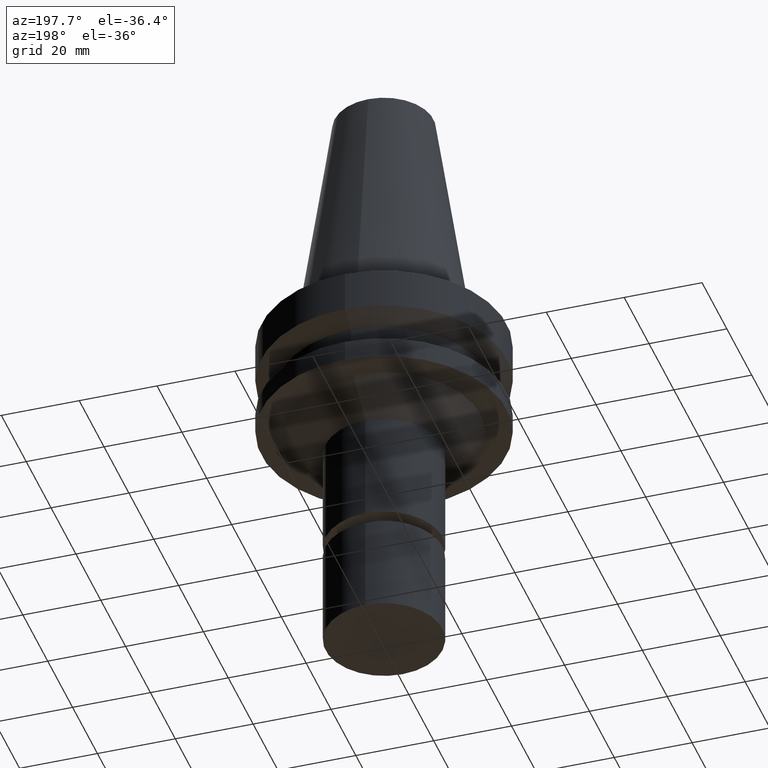
[diagram: clean part render]
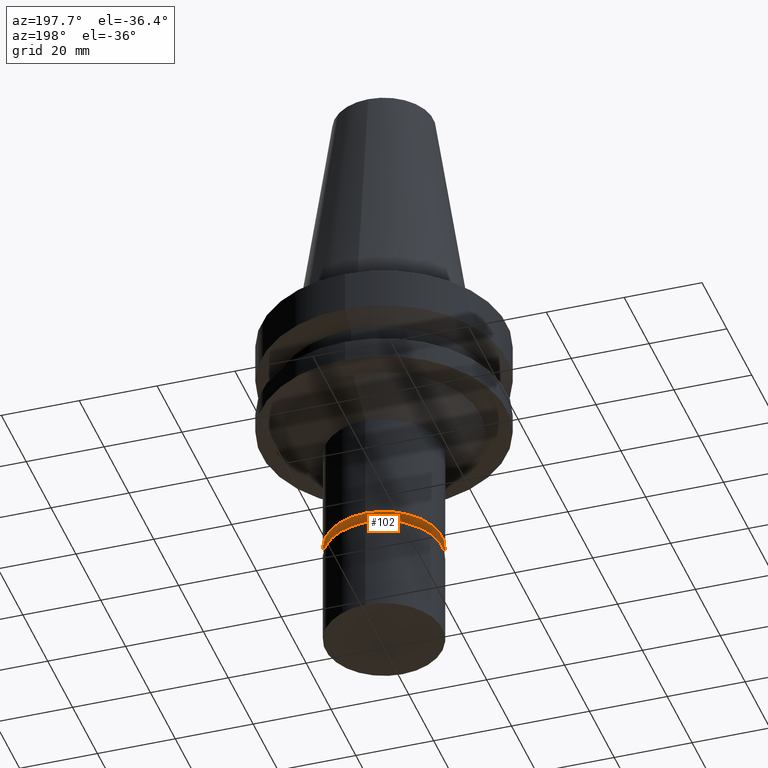
[diagram: same view with one face highlighted and labeled with its STEP entity id]
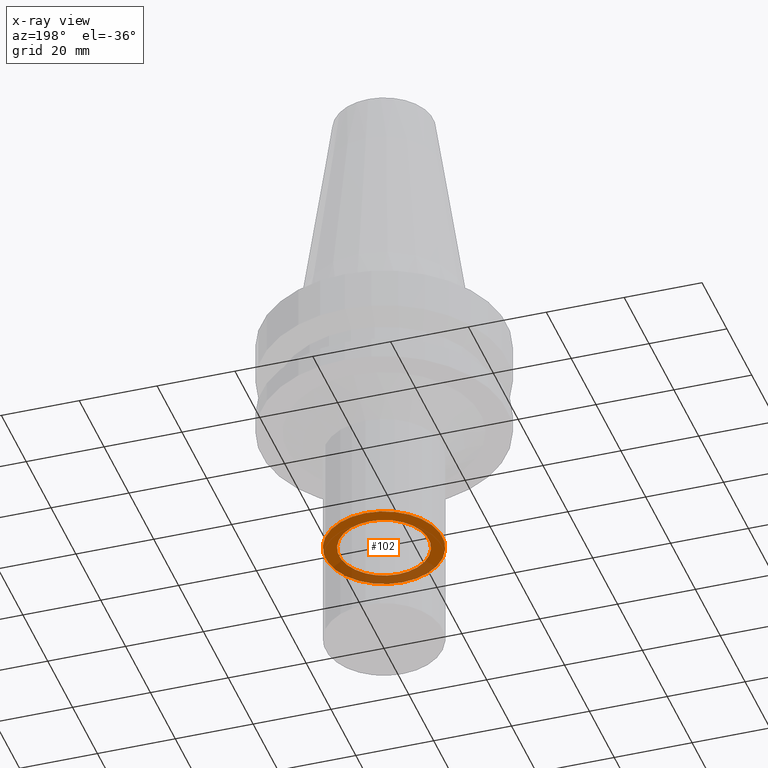
[diagram: x-ray of the same camera — body ghosted, the highlighted face saturated]
A machine part, auxiliary view. The second image highlights one B-rep face of the part: STEP entity #102.
The next image is the same camera in x-ray: the body ghosted, the highlighted face saturated — about 33% of this face is hidden behind the body in this view.
In plain terms, the highlighted planar face has unit normal (0, 0, -1).
Its self-contained STEP definition (entity closure, byte-faithful):
#82=EDGE_CURVE('Unnamed[1]',#212,#212,#213,.T.);
#84=EDGE_CURVE('Unnamed[1]',#215,#215,#216,.T.);
#102=ADVANCED_FACE('Unnamed[1]',(#243,#244),#245,.T.);
#212=VERTEX_POINT('',#391);
#213=CIRCLE('',#392,15.0);
#215=VERTEX_POINT('',#395);
#216=CIRCLE('',#396,11.4999999999906);
#243=FACE_BOUND('',#430,.T.);
#244=FACE_OUTER_BOUND('',#431,.T.);
#245=PLANE('',#432);
#391=CARTESIAN_POINT('',(3.80252831135249E-015,15.0000000000001,-62.0999999999994));
#392=AXIS2_PLACEMENT_3D('',#592,#593,#594);
#395=CARTESIAN_POINT('',(3.80252831135254E-015,11.4999999999907,-62.1000000000001));
#396=AXIS2_PLACEMENT_3D('',#595,#596,#597);
#430=EDGE_LOOP('',(#626));
#431=EDGE_LOOP('',(#627));
#432=AXIS2_PLACEMENT_3D('',#628,#629,#630);
#592=CARTESIAN_POINT('',(3.80252831135249E-015,7.10958984107055E-014,-62.0999999999994));
#593=DIRECTION('',(6.12323399573677E-017,-4.72563956650279E-017,-1.0));
#594=DIRECTION('',(-1.93353304624816E-033,1.0,-4.72563956650279E-017));
#595=CARTESIAN_POINT('',(3.80252831135254E-015,7.10958984107055E-014,-62.1000000000001));
#596=DIRECTION('',(6.12323399573677E-017,-4.72563956650279E-017,-1.0));
#597=DIRECTION('',(-1.93353304624816E-033,1.0,-4.72563956650279E-017));
#626=ORIENTED_EDGE('',*,*,#84,.F.);
#627=ORIENTED_EDGE('',*,*,#82,.T.);
#628=CARTESIAN_POINT('',(3.80252831135251E-015,13.2499999999954,-62.0999999999997));
#629=DIRECTION('',(6.12323399573677E-017,2.03134674896543E-013,-1.0));
#630=DIRECTION('',(-1.24432386231253E-029,1.0,2.03134674896543E-013));